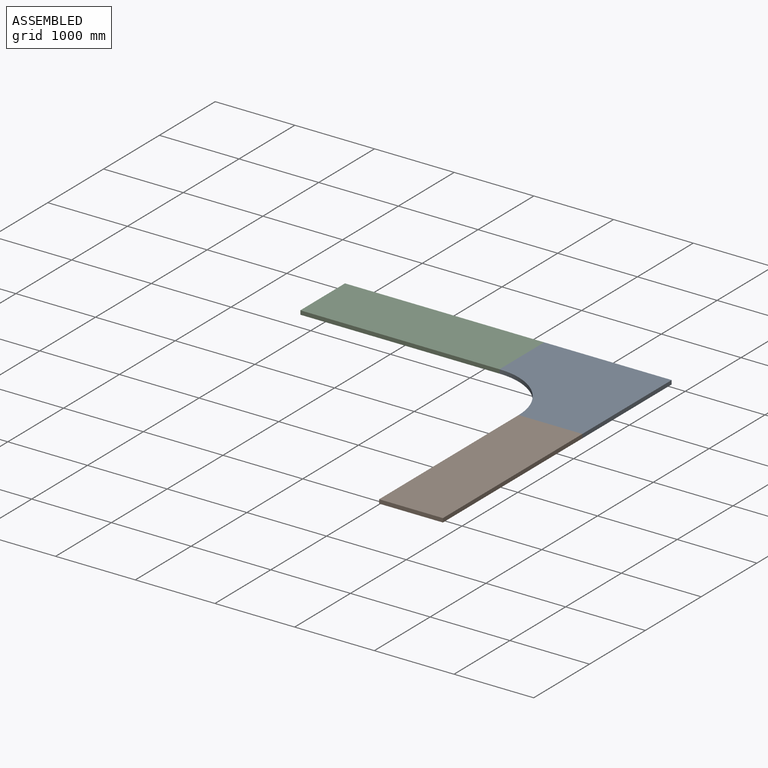
[diagram: assembled view]
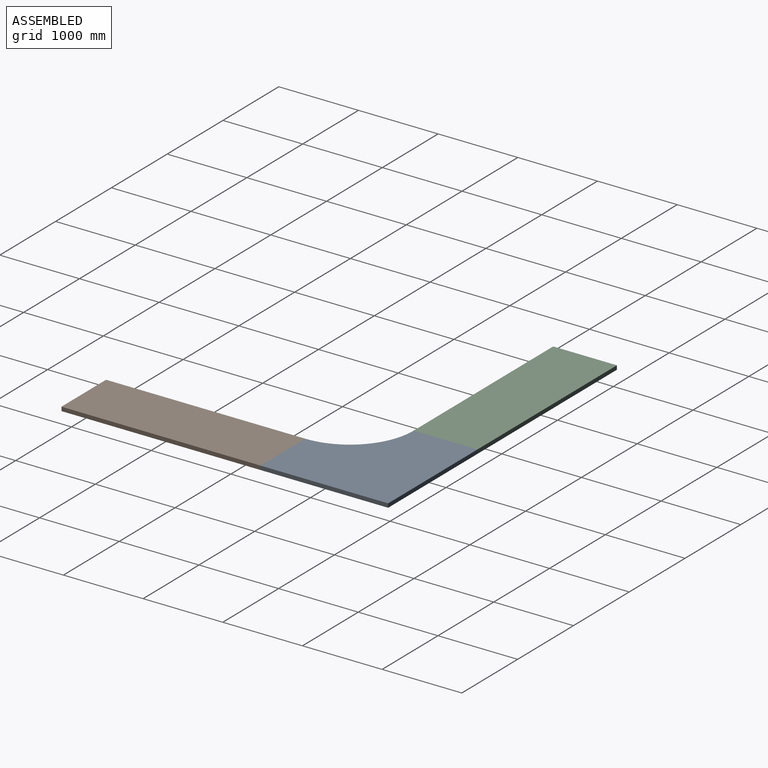
[diagram: assembled view, second angle]
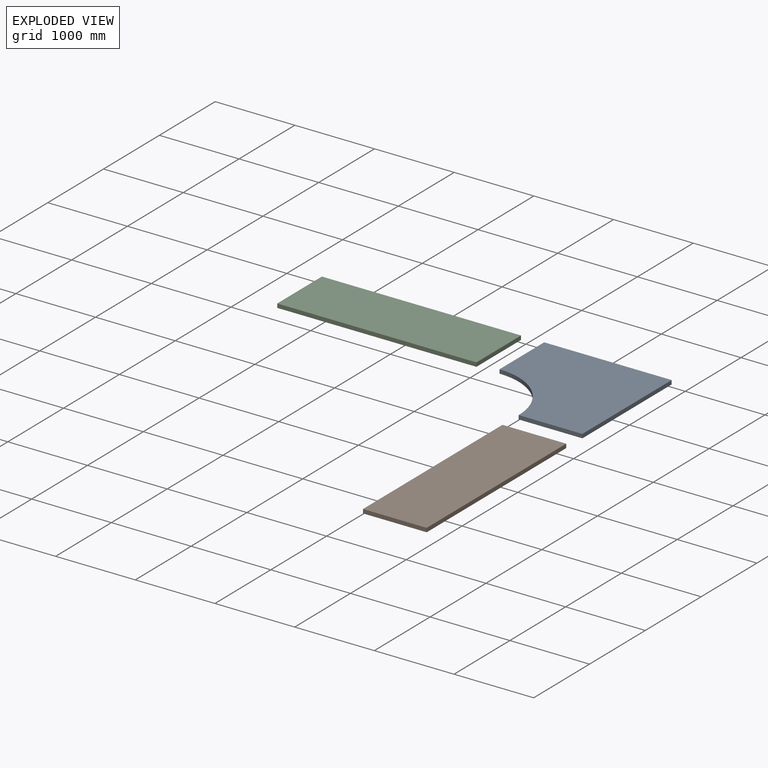
[diagram: exploded view]
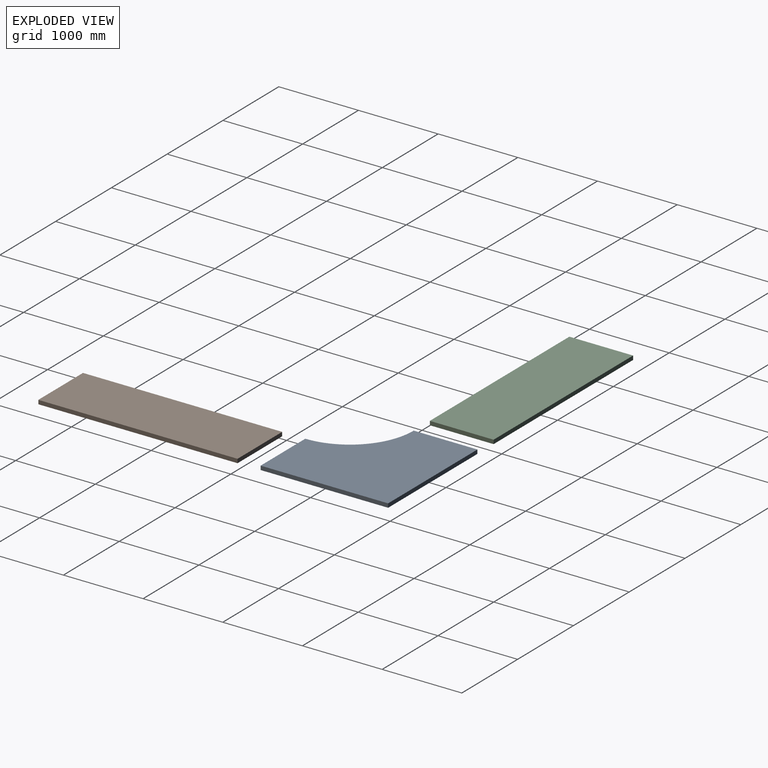
[diagram: exploded view, second angle]
ASSEMBLY  parts=3 mates=2
PART A: 7 faces, bbox 1600x1600x50 mm
  f0: plane 1600x50mm, normal (1,0,0), area 80000mm2, adj f1,f4,f5,f6
  f1: plane 1600x50mm, normal (0,1,0), area 80000mm2, adj f0,f2,f5,f6
  f2: plane 800x50mm, normal (-1,0,0), area 40000mm2, adj f1,f3,f5,f6
  f3: cylinder r=800mm len=800mm, axis (0,0,-1), area 62831.9mm2, adj f2,f4,f5,f6
  f4: plane 800x50mm, normal (0,-1,0), area 40000mm2, adj f0,f3,f5,f6
  f5: plane 1600x1600mm, normal (0,0,1), area 2057345.2mm2, adj f0,f1,f2,f3,f4
  f6: plane 1600x1600mm, normal (0,0,-1), area 2057345.2mm2, adj f0,f1,f2,f3,f4
PART B: 6 faces, bbox 2500x800x50 mm
  f0: plane 2500x50mm, normal (0,1,0), area 125000mm2, adj f1,f3,f4,f5
  f1: plane 800x50mm, normal (-1,0,0), area 40000mm2, adj f0,f2,f4,f5
  f2: plane 2500x50mm, normal (0,-1,0), area 125000mm2, adj f1,f3,f4,f5
  f3: plane 800x50mm, normal (1,0,0), area 40000mm2, adj f0,f2,f4,f5
  f4: plane 2500x800mm, normal (0,0,1), area 2000000mm2, adj f0,f1,f2,f3
  f5: plane 2500x800mm, normal (0,0,-1), area 2000000mm2, adj f0,f1,f2,f3
PART C: same geometry as B
PLACE A t=(-1902.25,503.35,-743.24)mm
PLACE B rot(axis=(0,0,1),90deg) t=(-1502.25,-1916.28,-743.24)mm
PLACE C t=(-3921.88,503.35,-743.24)mm
MATE fastened A.f2 <-> C.f3  axis (-1,0,0) through (-2702.25,903.35,-743.24)mm
MATE fastened A.f4 <-> B.f3  axis (0,-1,0) through (-1102.25,-696.65,-743.24)mm
